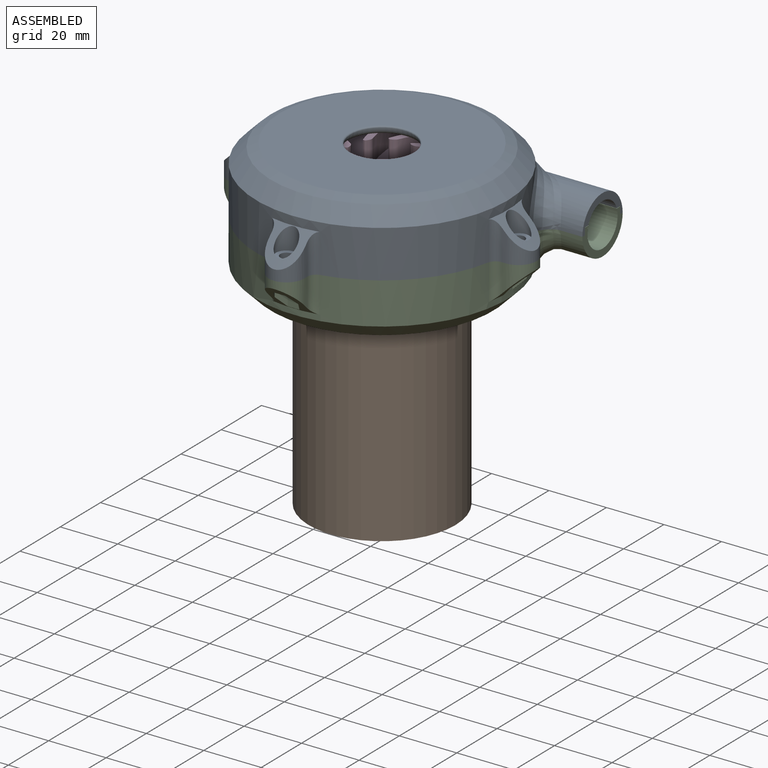
[diagram: assembled view]
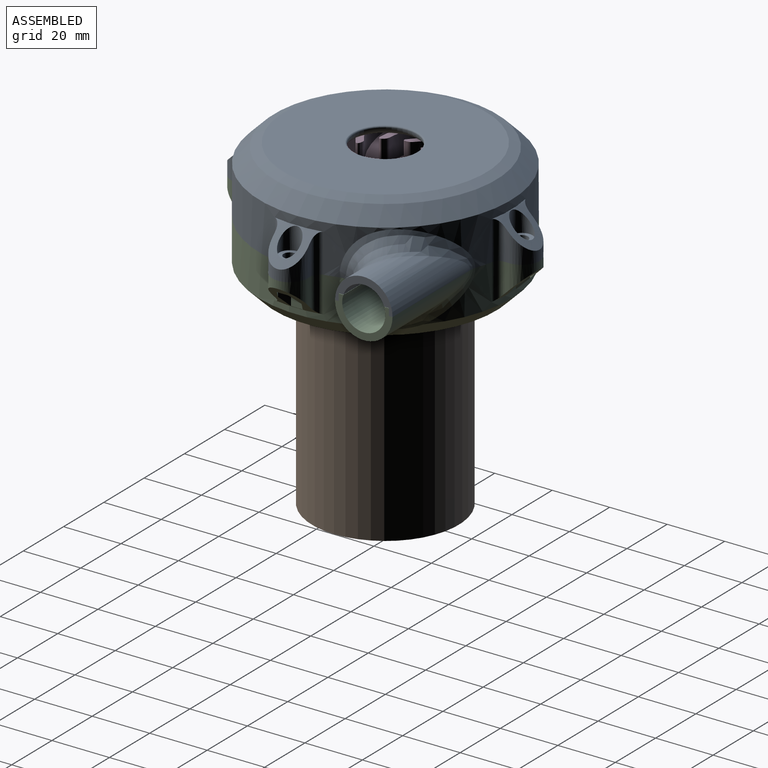
[diagram: assembled view, second angle]
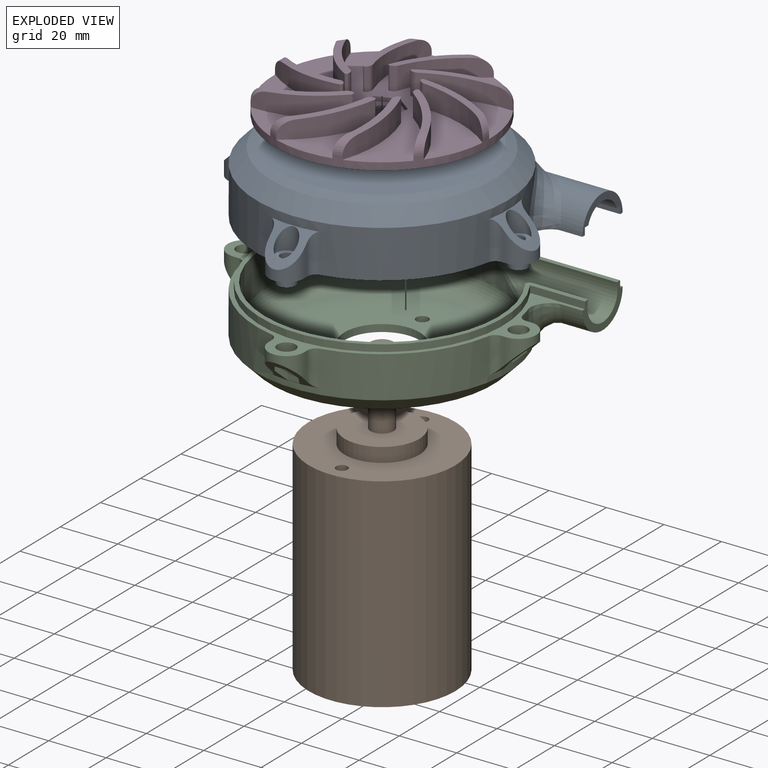
[diagram: exploded view]
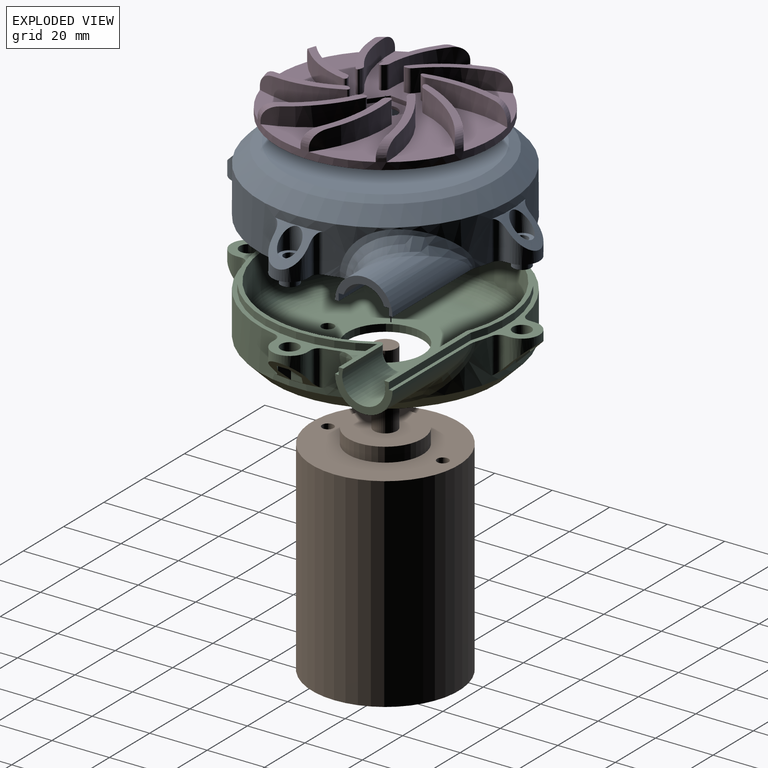
[diagram: exploded view, second angle]
ASSEMBLY  parts=4 mates=3
PART A: 65 faces, bbox 109.6x108.2x28.2 mm
  f0: cylinder r=7.5mm len=21.54mm, axis (-1,0,0), area 45mm2, adj f1,f4,f60
  f1: cylinder r=43.75mm len=15.45mm, axis (0,0,-1), area 10.6mm2, adj f0,f3,f60
  f2: plane 20x10mm, normal (1,0,0), area 61.8mm2, adj f3,f7,f39,f60,f61,f63
  f3: cylinder r=7.5mm len=33.44mm, axis (1,0,0), area 478.4mm2, adj f1,f2,f60
  f4: bspline ~21.84x16.4mm, area 83mm2, adj f0,f6,f60
  f5: cylinder r=43.75mm len=87.5mm, axis (0,0,-1), area 3112.7mm2, adj f7,f27,f28,f29,f30,f48,f49,f52
  f6: cylinder r=40.75mm len=81.5mm, axis (0,0,-1), area 3050.4mm2, adj f4,f14,f60
  f7: plane 109.57x108.22mm, normal (0,0,1), area 767.7mm2, adj f2,f5,f15,f16,f17,f18,f19,f20
  f8: cylinder r=2.15mm len=8.5mm, axis (0,0,1), area 114.8mm2, adj f31,f43
  f9: cylinder r=2.15mm len=8.5mm, axis (0,0,1), area 114.8mm2, adj f33,f45
  f10: cylinder r=2.15mm len=8.5mm, axis (0,0,1), area 114.8mm2, adj f35,f47
  f11: cylinder r=2.15mm len=8.5mm, axis (0,0,1), area 114.8mm2, adj f37,f41
  f12: cylinder r=11mm len=22mm, axis (0,0,-1), area 0mm2, adj f51,f64
  f13: plane 70.5x70.5mm, normal (0,0,-1), area 3488.1mm2, adj f50,f64
  f14: revolved ~81.5x81.5mm, area 5094.2mm2, adj f6,f51
  f15: plane 11x1.66mm, normal (0,1,0), area 16.8mm2, adj f7,f16,f30,f58
  f16: cylinder r=6.15mm len=12.3mm, axis (0,0,1), area 109.1mm2, adj f7,f15,f17,f30
  f17: plane 11x1.66mm, normal (0,-1,0), area 16.8mm2, adj f7,f16,f30,f59
  f18: plane 11x1.66mm, normal (-1,0,0), area 16.8mm2, adj f7,f19,f29,f57
  f19: cylinder r=6.15mm len=12.3mm, axis (0,0,1), area 109.1mm2, adj f7,f18,f20,f29
  f20: plane 11x1.66mm, normal (1,0,0), area 16.8mm2, adj f7,f19,f29,f56
  f21: plane 11x1.66mm, normal (0,-1,0), area 16.8mm2, adj f7,f22,f28,f54
  f22: cylinder r=6.15mm len=12.3mm, axis (0,0,1), area 109.1mm2, adj f7,f21,f23,f28
  f23: plane 11x1.66mm, normal (0,1,0), area 16.8mm2, adj f7,f22,f28,f55
  f24: plane 11x1.66mm, normal (1,0,0), area 16.8mm2, adj f7,f25,f27,f52
  f25: cylinder r=6.15mm len=12.3mm, axis (0,0,1), area 109.1mm2, adj f7,f24,f26,f27
  f26: plane 11x1.66mm, normal (-1,0,0), area 16.8mm2, adj f7,f25,f27,f53
  f27: cone r=43.75mm half-angle=45deg, axis (0,0,1), area 101.4mm2, adj f5,f24,f25,f26,f38,f52,f53
  f28: cone r=43.75mm half-angle=45deg, axis (0,0,1), area 102.2mm2, adj f5,f21,f22,f23,f36,f54,f55
  f29: cone r=43.75mm half-angle=45deg, axis (0,0,1), area 96.1mm2, adj f5,f18,f19,f20,f34,f56,f57
  f30: cone r=43.75mm half-angle=45deg, axis (0,0,1), area 106mm2, adj f5,f15,f16,f17,f32,f58,f59
  f31: plane 7.3x7.3mm, normal (0,0,-1), area 27.3mm2, adj f8,f32
  f32: cylinder r=3.65mm len=7.9mm, axis (0,0,-1), area 95.9mm2, adj f30,f31
  f33: plane 7.3x7.3mm, normal (0,0,-1), area 27.3mm2, adj f9,f34
  f34: cylinder r=3.65mm len=7.9mm, axis (0,0,-1), area 95.9mm2, adj f29,f33
  f35: plane 7.3x7.3mm, normal (0,0,-1), area 27.3mm2, adj f10,f36
  f36: cylinder r=3.65mm len=7.9mm, axis (0,0,-1), area 95.4mm2, adj f28,f35
  f37: plane 7.3x7.3mm, normal (0,0,-1), area 27.3mm2, adj f11,f38
  f38: cylinder r=3.65mm len=7.9mm, axis (0,0,-1), area 95.6mm2, adj f27,f37
  f39: cylinder r=10mm len=38.69mm, axis (1,0,0), area 606.5mm2, adj f2,f7,f48
  f40: cylinder r=3.15mm len=6.3mm, axis (0,0,-1), area 59.4mm2, adj f7,f41
  f41: plane 6.3x6.3mm, normal (0,0,1), area 16.7mm2, adj f11,f40
  f42: cylinder r=3.15mm len=6.3mm, axis (0,0,-1), area 59.4mm2, adj f7,f43
  f43: plane 6.3x6.3mm, normal (0,0,1), area 16.7mm2, adj f8,f42
  f44: cylinder r=3.15mm len=6.3mm, axis (0,0,-1), area 59.4mm2, adj f7,f45
  f45: plane 6.3x6.3mm, normal (0,0,1), area 16.7mm2, adj f9,f44
  f46: cylinder r=3.15mm len=6.3mm, axis (0,0,-1), area 59.4mm2, adj f7,f47
  f47: plane 6.3x6.3mm, normal (0,0,1), area 16.7mm2, adj f10,f46
  f48: bspline ~33.14x28.21mm, area 367.4mm2, adj f5,f7,f39
  f49: cone r=43.75mm half-angle=45deg, axis (0,0,1), area 1862.2mm2, adj f5,f50
  f50: cone r=35.25mm half-angle=67.5deg, axis (0,0,1), area 858.1mm2, adj f13,f49
  f51: torus R=13.5mm, axis (0,0,1), area 293.6mm2, adj f12,f14
  f52: cylinder r=3mm len=13.5mm, axis (0,0,-1), area 50.5mm2, adj f5,f7,f24,f27
  f53: cylinder r=3mm len=13.5mm, axis (0,0,-1), area 50.5mm2, adj f5,f7,f26,f27
  f54: cylinder r=3mm len=13.5mm, axis (0,0,-1), area 50.5mm2, adj f5,f7,f21,f28
  f55: cylinder r=3mm len=13.5mm, axis (0,0,-1), area 50.5mm2, adj f5,f7,f23,f28
  f56: cylinder r=3mm len=13.5mm, axis (0,0,-1), area 50.5mm2, adj f5,f7,f20,f29
  f57: cylinder r=3mm len=13.5mm, axis (0,0,-1), area 50.5mm2, adj f5,f7,f18,f29
  f58: cylinder r=3mm len=13.5mm, axis (0,0,-1), area 50.5mm2, adj f5,f7,f15,f30
  f59: cylinder r=3mm len=13.5mm, axis (0,0,-1), area 50.5mm2, adj f5,f7,f17,f30
  f60: plane 97.52x84.77mm, normal (0,0,1), area 452.2mm2, adj f0,f1,f2,f3,f4,f6,f61,f62
  f61: plane 19.08x2.5mm, normal (0,-1,0), area 47.7mm2, adj f2,f7,f60,f62
  f62: cylinder r=42.25mm len=84.5mm, axis (0,0,1), area 592.8mm2, adj f7,f60,f61,f63
  f63: plane 40.68x2.5mm, normal (0,1,0), area 101.7mm2, adj f2,f7,f60,f62
  f64: torus R=11.5mm, axis (0,0,1), area 55.2mm2, adj f12,f13
PART B: 11 faces, bbox 51x51x107 mm
  f0: cylinder r=25.5mm len=71mm, axis (0,0,-1), area 11375.7mm2, adj f7,f8
  f1: cylinder r=2mm len=71mm, axis (0,0,1), area 892.2mm2, adj f7,f8
  f2: cylinder r=2mm len=71mm, axis (0,0,1), area 892.2mm2, adj f7,f8
  f3: plane 26x26mm, normal (0,0,1), area 480.7mm2, adj f4,f6
  f4: cylinder r=4mm len=26mm, axis (0,0,1), area 653.5mm2, adj f3,f5
  f5: plane 8x8mm, normal (0,0,1), area 50.3mm2, adj f4
  f6: cylinder r=13mm len=26mm, axis (0,0,1), area 408.4mm2, adj f3,f7
  f7: plane 51x51mm, normal (0,0,1), area 1486.8mm2, adj f0,f1,f2,f6
  f8: plane 51x51mm, normal (0,0,-1), area 1486.8mm2, adj f0,f1,f2,f9
  f9: cylinder r=13mm len=26mm, axis (0,0,-1), area 408.4mm2, adj f8,f10
  f10: plane 26x26mm, normal (0,0,-1), area 530.9mm2, adj f9
PART C: 90 faces, bbox 109.6x108.2x24.8 mm
  f0: cylinder r=2.15mm len=4.3mm, axis (0,0,-1), area 25.7mm2, adj f52,f75
  f1: cylinder r=2.15mm len=4.3mm, axis (0,0,-1), area 25.7mm2, adj f50,f54
  f2: cylinder r=2.15mm len=4.3mm, axis (0,0,-1), area 25.7mm2, adj f48,f61
  f3: cylinder r=2.15mm len=4.3mm, axis (0,0,-1), area 25.7mm2, adj f46,f68
  f4: cylinder r=43.75mm len=87.5mm, axis (0,0,-1), area 2647.3mm2, adj f6,f10,f34,f35,f36,f37,f38,f39
  f5: cylinder r=40.75mm len=81.5mm, axis (0,0,-1), area 2903.2mm2, adj f11,f13,f14,f17,f19,f89
  f6: plane 109.57x108.22mm, normal (0,0,-1), area 766.2mm2, adj f4,f7,f9,f10,f12,f15,f16,f22
  f7: cylinder r=10mm len=38.69mm, axis (1,0,0), area 607.3mm2, adj f6,f9,f10
  f8: cylinder r=7.5mm len=40.99mm, axis (1,0,0), area 799.4mm2, adj f9,f11,f17,f20,f21
  f9: plane 20x12.4mm, normal (1,0,0), area 75.3mm2, adj f6,f7,f8,f12,f15,f17
  f10: bspline ~33.09x28.14mm, area 367.4mm2, adj f4,f6,f7,f88
  f11: bspline ~22.41x16.74mm, area 89.8mm2, adj f5,f8,f13,f14,f21
  f12: plane 19.08x2.4mm, normal (0,1,0), area 45.8mm2, adj f6,f9,f16,f17
  f13: extruded ~2.4x1.54mm, area 4.4mm2, adj f5,f11,f17,f18,f20
  f14: extruded ~1.62x1.25mm, area 1mm2, adj f5,f11,f19
  f15: plane 40.68x2.4mm, normal (0,-1,0), area 97.6mm2, adj f6,f9,f16,f17
  f16: cylinder r=42.25mm len=84.5mm, axis (0,0,1), area 569.1mm2, adj f6,f12,f15,f17
  f17: plane 97.65x84.9mm, normal (0,0,-1), area 451.2mm2, adj f5,f8,f9,f12,f13,f15,f16,f18
  f18: bspline ~1.99x1.4mm, area 0mm2, adj f13,f17,f20
  f19: bspline ~4.43x1.95mm, area 1.8mm2, adj f5,f14,f17,f21
  f20: bspline ~3.62x1.74mm, area 2mm2, adj f8,f13,f17,f18
  f21: bspline ~3.2x0.89mm, area 1mm2, adj f8,f11,f17,f19
  f22: cylinder r=6.15mm len=12.3mm, axis (0,0,-1), area 89.8mm2, adj f6,f23,f24,f34
  f23: plane 10x1.66mm, normal (-1,0,0), area 15.2mm2, adj f6,f22,f34,f45
  f24: plane 10x1.66mm, normal (1,0,0), area 15.2mm2, adj f6,f22,f34,f44
  f25: plane 10x1.66mm, normal (0,-1,0), area 15.2mm2, adj f6,f26,f37,f43
  f26: cylinder r=6.15mm len=12.3mm, axis (0,0,-1), area 89.8mm2, adj f6,f25,f27,f37
  f27: plane 10x1.66mm, normal (0,1,0), area 15.2mm2, adj f6,f26,f37,f42
  f28: plane 10x1.66mm, normal (-1,0,0), area 15.2mm2, adj f6,f29,f36,f40
  f29: cylinder r=6.15mm len=12.3mm, axis (0,0,-1), area 89.8mm2, adj f6,f28,f30,f36
  f30: plane 10x1.66mm, normal (1,0,0), area 15.2mm2, adj f6,f29,f36,f41
  f31: plane 10x1.66mm, normal (0,1,0), area 15.2mm2, adj f6,f32,f35,f38
  f32: cylinder r=6.15mm len=12.3mm, axis (0,0,-1), area 89.8mm2, adj f6,f31,f33,f35
  f33: plane 10x1.66mm, normal (0,-1,0), area 15.2mm2, adj f6,f32,f35,f39
  f34: cone r=43.75mm half-angle=45deg, axis (0,0,-1), area 98.9mm2, adj f4,f22,f23,f24,f44,f45,f76,f77
  f35: cone r=43.75mm half-angle=45deg, axis (0,0,-1), area 98.9mm2, adj f4,f31,f32,f33,f38,f39,f69,f70
  f36: cone r=43.75mm half-angle=45deg, axis (0,0,-1), area 98.9mm2, adj f4,f28,f29,f30,f40,f41,f62,f63
  f37: cone r=43.75mm half-angle=45deg, axis (0,0,-1), area 98.9mm2, adj f4,f25,f26,f27,f42,f43,f55,f56
  f38: cylinder r=3mm len=12.5mm, axis (0,0,-1), area 46.4mm2, adj f4,f6,f31,f35
  f39: cylinder r=3mm len=12.5mm, axis (0,0,-1), area 46.4mm2, adj f4,f6,f33,f35
  f40: cylinder r=3mm len=12.5mm, axis (0,0,-1), area 46.4mm2, adj f4,f6,f28,f36
  f41: cylinder r=3mm len=12.5mm, axis (0,0,-1), area 46.4mm2, adj f4,f6,f30,f36
  f42: cylinder r=3mm len=12.5mm, axis (0,0,-1), area 46.4mm2, adj f4,f6,f27,f37
  f43: cylinder r=3mm len=12.5mm, axis (0,0,-1), area 46.4mm2, adj f4,f6,f25,f37
  f44: cylinder r=3mm len=12.5mm, axis (0,0,-1), area 46.4mm2, adj f4,f6,f24,f34
  f45: cylinder r=3mm len=12.5mm, axis (0,0,-1), area 46.4mm2, adj f4,f6,f23,f34
  f46: plane 6.35x6.35mm, normal (0,0,-1), area 17.1mm2, adj f3,f47
  f47: cylinder r=3.17mm len=6.35mm, axis (0,0,-1), area 61.8mm2, adj f6,f46
  f48: plane 6.35x6.35mm, normal (0,0,-1), area 17.1mm2, adj f2,f49
  f49: cylinder r=3.17mm len=6.35mm, axis (0,0,-1), area 61.8mm2, adj f6,f48
  f50: plane 6.35x6.35mm, normal (0,0,-1), area 17.1mm2, adj f1,f51
  f51: cylinder r=3.17mm len=6.35mm, axis (0,0,-1), area 61.8mm2, adj f6,f50
  f52: plane 6.35x6.35mm, normal (0,0,-1), area 17.1mm2, adj f0,f53
  f53: cylinder r=3.17mm len=6.35mm, axis (0,0,-1), area 61.8mm2, adj f6,f52
  f54: plane 8.2x7.1mm, normal (0,0,1), area 29.1mm2, adj f1,f55,f56,f57,f58,f59,f60
  f55: plane 7.33x3.63mm, normal (-0.5,0.87,0), area 22.2mm2, adj f37,f54,f56,f60
  f56: plane 7.44x4.24mm, normal (-1,0,0), area 29.9mm2, adj f37,f54,f55,f57
  f57: plane 7.33x3.63mm, normal (-0.5,-0.87,0), area 22.2mm2, adj f37,f54,f56,f58
  f58: plane 3.66x3.64mm, normal (0.5,-0.87,0), area 7.7mm2, adj f37,f54,f57,f59
  f59: plane 4.22x0.32mm, normal (1,0,0), area 0.8mm2, adj f37,f54,f58,f60
  f60: plane 3.66x3.64mm, normal (0.5,0.87,0), area 7.7mm2, adj f37,f54,f55,f59
  f61: plane 8.2x7.1mm, normal (0,0,1), area 29.1mm2, adj f2,f62,f63,f64,f65,f66,f67
  f62: plane 3.66x3.64mm, normal (-0.87,-0.5,0), area 7.7mm2, adj f36,f61,f63,f67
  f63: plane 4.22x0.32mm, normal (0,-1,0), area 0.8mm2, adj f36,f61,f62,f64
  f64: plane 3.66x3.64mm, normal (0.87,-0.5,0), area 7.7mm2, adj f36,f61,f63,f65
  f65: plane 7.33x3.63mm, normal (0.87,0.5,0), area 22.2mm2, adj f36,f61,f64,f66
  f66: plane 7.44x4.24mm, normal (0,1,0), area 29.9mm2, adj f36,f61,f65,f67
  f67: plane 7.33x3.63mm, normal (-0.87,0.5,0), area 22.2mm2, adj f36,f61,f62,f66
  f68: plane 8.2x7.1mm, normal (0,0,1), area 29.1mm2, adj f3,f69,f70,f71,f72,f73,f74
  f69: plane 3.66x3.64mm, normal (-0.5,0.87,0), area 7.7mm2, adj f35,f68,f70,f74
  f70: plane 4.22x0.32mm, normal (-1,0,0), area 0.8mm2, adj f35,f68,f69,f71
  f71: plane 3.66x3.64mm, normal (-0.5,-0.87,0), area 7.7mm2, adj f35,f68,f70,f72
  f72: plane 7.33x3.63mm, normal (0.5,-0.87,0), area 22.2mm2, adj f35,f68,f71,f73
  f73: plane 7.44x4.24mm, normal (1,0,0), area 29.9mm2, adj f35,f68,f72,f74
  f74: plane 7.33x3.63mm, normal (0.5,0.87,0), area 22.2mm2, adj f35,f68,f69,f73
  f75: plane 8.2x7.1mm, normal (0,0,1), area 29.1mm2, adj f0,f76,f77,f78,f79,f80,f81
  f76: plane 3.66x3.64mm, normal (0.87,0.5,0), area 7.7mm2, adj f34,f75,f77,f81
  f77: plane 4.22x0.32mm, normal (0,1,0), area 0.8mm2, adj f34,f75,f76,f78
  f78: plane 3.66x3.64mm, normal (-0.87,0.5,0), area 7.7mm2, adj f34,f75,f77,f79
  f79: plane 7.33x3.63mm, normal (-0.87,-0.5,0), area 22.2mm2, adj f34,f75,f78,f80
  f80: plane 7.44x4.24mm, normal (0,-1,0), area 29.9mm2, adj f34,f75,f79,f81
  f81: plane 7.33x3.63mm, normal (0.87,-0.5,0), area 22.2mm2, adj f34,f75,f76,f80
  f82: plane 67.5x67.5mm, normal (0,0,-1), area 3010.3mm2, adj f83,f84,f85,f89
  f83: cylinder r=2.15mm len=4.3mm, axis (0,0,-1), area 33.8mm2, adj f82,f86
  f84: cylinder r=13.1mm len=26.2mm, axis (0,0,-1), area 205.8mm2, adj f82,f86
  f85: cylinder r=2.15mm len=4.3mm, axis (0,0,-1), area 33.8mm2, adj f82,f86
  f86: plane 78.08x78.08mm, normal (0,0,1), area 4148.5mm2, adj f83,f84,f85,f87,f88
  f87: cone r=38.75mm half-angle=45deg, axis (0,0,-1), area 1729.7mm2, adj f4,f86,f88
  f88: bspline ~14.33x12.98mm, area 96.3mm2, adj f10,f86,f87
  f89: torus R=33.75mm, axis (0,0,1), area 2639.6mm2, adj f5,f82
PART D: 81 faces, bbox 75.3x75x10.5 mm
  f0: cylinder r=4.1mm len=8.2mm, axis (0,0,-1), area 25.8mm2, adj f3,f80
  f1: cylinder r=37.5mm len=75mm, axis (0,0,-1), area 627.3mm2, adj f2,f3,f4,f5,f6,f7,f8,f9
  f2: plane 75x75mm, normal (0,0,1), area 3501.9mm2, adj f1,f4,f5,f6,f7,f8,f9,f10
  f3: plane 75x75mm, normal (0,0,-1), area 4365.1mm2, adj f0,f1
  f4: cylinder r=41.72mm len=23.22mm, axis (0,0,1), area 194.9mm2, adj f1,f2,f31,f51,f71
  f5: cylinder r=44.22mm len=29.85mm, axis (0,0,1), area 203.7mm2, adj f1,f2,f30,f60,f70
  f6: cylinder r=41.72mm len=28.53mm, axis (0,0,1), area 194.9mm2, adj f1,f2,f30,f50,f70
  f7: cylinder r=44.22mm len=24.64mm, axis (0,0,1), area 203.7mm2, adj f1,f2,f29,f59,f69
  f8: cylinder r=41.72mm len=22.95mm, axis (0,0,1), area 194.9mm2, adj f1,f2,f29,f49,f69
  f9: cylinder r=44.22mm len=28.13mm, axis (0,0,1), area 203.7mm2, adj f1,f2,f28,f58,f68
  f10: cylinder r=41.72mm len=27.21mm, axis (0,0,1), area 194.9mm2, adj f1,f2,f28,f48,f68
  f11: cylinder r=44.22mm len=28.65mm, axis (0,0,1), area 203.7mm2, adj f1,f2,f27,f57,f67
  f12: cylinder r=41.72mm len=27.07mm, axis (0,0,1), area 194.9mm2, adj f1,f2,f27,f47,f67
  f13: cylinder r=44.22mm len=23.66mm, axis (0,0,1), area 203.7mm2, adj f1,f2,f26,f56,f66
  f14: cylinder r=41.72mm len=23.22mm, axis (0,0,1), area 194.9mm2, adj f1,f2,f26,f46,f66
  f15: cylinder r=44.22mm len=29.85mm, axis (0,0,1), area 203.7mm2, adj f1,f2,f25,f55,f65
  f16: cylinder r=41.72mm len=28.53mm, axis (0,0,1), area 194.9mm2, adj f1,f2,f25,f45,f65
  f17: cylinder r=44.22mm len=24.64mm, axis (0,0,1), area 203.7mm2, adj f1,f2,f24,f54,f64
  f18: cylinder r=41.72mm len=22.95mm, axis (0,0,1), area 194.9mm2, adj f1,f2,f24,f44,f64
  f19: cylinder r=44.22mm len=28.13mm, axis (0,0,1), area 203.7mm2, adj f1,f2,f33,f63,f73
  f20: cylinder r=41.72mm len=27.21mm, axis (0,0,1), area 194.9mm2, adj f1,f2,f33,f53,f73
  f21: cylinder r=44.22mm len=28.65mm, axis (0,0,1), area 203.7mm2, adj f1,f2,f32,f62,f72
  f22: cylinder r=41.72mm len=27.07mm, axis (0,0,1), area 194.9mm2, adj f1,f2,f32,f52,f72
  f23: cylinder r=44.22mm len=23.66mm, axis (0,0,1), area 203.7mm2, adj f1,f2,f31,f61,f71
  f24: cone r=10.5mm half-angle=85.5deg, axis (0,0,-1), area 63mm2, adj f17,f18,f34,f44,f54,f64
  f25: cone r=10.5mm half-angle=85.5deg, axis (0,0,-1), area 63mm2, adj f15,f16,f35,f45,f55,f65
  f26: cone r=10.5mm half-angle=85.5deg, axis (0,0,-1), area 63mm2, adj f13,f14,f36,f46,f56,f66
  f27: cone r=10.5mm half-angle=85.5deg, axis (0,0,-1), area 63mm2, adj f11,f12,f37,f47,f57,f67
  f28: cone r=10.5mm half-angle=85.5deg, axis (0,0,-1), area 63mm2, adj f9,f10,f38,f48,f58,f68
  f29: cone r=10.5mm half-angle=85.5deg, axis (0,0,-1), area 63mm2, adj f7,f8,f39,f49,f59,f69
  f30: cone r=10.5mm half-angle=85.5deg, axis (0,0,-1), area 63mm2, adj f5,f6,f41,f50,f60,f70
  f31: cone r=10.5mm half-angle=85.5deg, axis (0,0,-1), area 63mm2, adj f4,f23,f40,f51,f61,f71
  f32: cone r=10.5mm half-angle=85.5deg, axis (0,0,-1), area 63mm2, adj f21,f22,f42,f52,f62,f72
  f33: cone r=10.5mm half-angle=85.5deg, axis (0,0,-1), area 63mm2, adj f19,f20,f43,f53,f63,f73
  f34: cylinder r=11mm len=7.96mm, axis (0,0,1), area 4.4mm2, adj f2,f24,f44,f54
  f35: cylinder r=11mm len=7.96mm, axis (0,0,1), area 4.4mm2, adj f2,f25,f45,f55
  f36: cylinder r=11mm len=7.96mm, axis (0,0,1), area 4.4mm2, adj f2,f26,f46,f56
  f37: cylinder r=11mm len=7.96mm, axis (0,0,1), area 4.4mm2, adj f2,f27,f47,f57
  f38: cylinder r=11mm len=7.96mm, axis (0,0,1), area 4.4mm2, adj f2,f28,f48,f58
  f39: cylinder r=11mm len=7.96mm, axis (0,0,1), area 4.4mm2, adj f2,f29,f49,f59
  f40: cylinder r=11mm len=7.96mm, axis (0,0,1), area 4.4mm2, adj f2,f31,f51,f61
  f41: cylinder r=11mm len=7.96mm, axis (0,0,1), area 4.4mm2, adj f2,f30,f50,f60
  f42: cylinder r=11mm len=7.96mm, axis (0,0,1), area 4.4mm2, adj f2,f32,f52,f62
  f43: cylinder r=11mm len=7.96mm, axis (0,0,1), area 4.4mm2, adj f2,f33,f53,f63
  f44: cylinder r=2mm len=7.96mm, axis (0,0,-1), area 14.8mm2, adj f2,f18,f24,f34
  f45: cylinder r=2mm len=7.96mm, axis (0,0,-1), area 14.8mm2, adj f2,f16,f25,f35
  f46: cylinder r=2mm len=7.96mm, axis (0,0,-1), area 14.8mm2, adj f2,f14,f26,f36
  f47: cylinder r=2mm len=7.96mm, axis (0,0,-1), area 14.8mm2, adj f2,f12,f27,f37
  f48: cylinder r=2mm len=7.96mm, axis (0,0,-1), area 14.8mm2, adj f2,f10,f28,f38
  f49: cylinder r=2mm len=7.96mm, axis (0,0,-1), area 14.8mm2, adj f2,f8,f29,f39
  f50: cylinder r=2mm len=7.96mm, axis (0,0,-1), area 14.8mm2, adj f2,f6,f30,f41
  f51: cylinder r=2mm len=7.96mm, axis (0,0,-1), area 14.8mm2, adj f2,f4,f31,f40
  f52: cylinder r=2mm len=7.96mm, axis (0,0,-1), area 14.8mm2, adj f2,f22,f32,f42
  f53: cylinder r=2mm len=7.96mm, axis (0,0,-1), area 14.8mm2, adj f2,f20,f33,f43
  f54: cylinder r=0.75mm len=7.96mm, axis (0,0,1), area 13.2mm2, adj f2,f17,f24,f34
  f55: cylinder r=0.75mm len=7.96mm, axis (0,0,1), area 13.2mm2, adj f2,f15,f25,f35
  f56: cylinder r=0.75mm len=7.96mm, axis (0,0,1), area 13.2mm2, adj f2,f13,f26,f36
  f57: cylinder r=0.75mm len=7.96mm, axis (0,0,1), area 13.2mm2, adj f2,f11,f27,f37
  f58: cylinder r=0.75mm len=7.96mm, axis (0,0,1), area 13.2mm2, adj f2,f9,f28,f38
  f59: cylinder r=0.75mm len=7.96mm, axis (0,0,1), area 13.2mm2, adj f2,f7,f29,f39
  f60: cylinder r=0.75mm len=7.96mm, axis (0,0,1), area 13.2mm2, adj f2,f5,f30,f41
  f61: cylinder r=0.75mm len=7.96mm, axis (0,0,1), area 13.2mm2, adj f2,f23,f31,f40
  f62: cylinder r=0.75mm len=7.96mm, axis (0,0,1), area 13.2mm2, adj f2,f21,f32,f42
  f63: cylinder r=0.75mm len=7.96mm, axis (0,0,1), area 13.2mm2, adj f2,f19,f33,f43
  f64: torus R=32.5mm, axis (0,0,1), area 19.4mm2, adj f1,f17,f18,f24
  f65: torus R=32.5mm, axis (0,0,1), area 19.4mm2, adj f1,f15,f16,f25
  f66: torus R=32.5mm, axis (0,0,1), area 19.4mm2, adj f1,f13,f14,f26
  f67: torus R=32.5mm, axis (0,0,1), area 19.4mm2, adj f1,f11,f12,f27
  f68: torus R=32.5mm, axis (0,0,1), area 19.4mm2, adj f1,f9,f10,f28
  f69: torus R=32.5mm, axis (0,0,1), area 19.4mm2, adj f1,f7,f8,f29
  f70: torus R=32.5mm, axis (0,0,1), area 19.4mm2, adj f1,f5,f6,f30
  f71: torus R=32.5mm, axis (0,0,1), area 19.4mm2, adj f1,f4,f23,f31
  f72: torus R=32.5mm, axis (0,0,1), area 19.4mm2, adj f1,f21,f22,f32
  f73: torus R=32.5mm, axis (0,0,1), area 19.4mm2, adj f1,f19,f20,f33
  f74: plane 6.5x3.75mm, normal (-0.87,-0.5,0), area 11.3mm2, adj f2,f75,f79,f80
  f75: plane 7.51x1.5mm, normal (0,-1,0), area 11.3mm2, adj f2,f74,f76,f80
  f76: plane 6.5x3.75mm, normal (0.87,-0.5,0), area 11.3mm2, adj f2,f75,f77,f80
  f77: plane 6.5x3.75mm, normal (0.87,0.5,0), area 11.3mm2, adj f2,f76,f78,f80
  f78: plane 7.51x1.5mm, normal (0,1,0), area 11.3mm2, adj f2,f77,f79,f80
  f79: plane 6.5x3.75mm, normal (-0.87,0.5,0), area 11.3mm2, adj f2,f74,f78,f80
  f80: plane 15.01x13mm, normal (0,0,1), area 93.5mm2, adj f0,f74,f75,f76,f77,f78,f79
PLACE A rot(axis=(1,0,0),180deg) t=(0,0,0)mm
PLACE B t=(0,0,-65)mm
PLACE C rot(axis=(-1,0,0),180deg) t=(55,0,-23)mm
PLACE D rot(axis=(0,0,1),143.5deg) t=(0,0,-14.48)mm
MATE fastened B.f2 <-> C.f83  axis (0,0,1) through (0,-20,-42.5)mm
MATE fastened C.f4 <-> A.f6  axis (0,0,1) through (0,0,-23)mm
MATE revolute A.f6 <-> D.f0  axis (0,0,1) through (0,0,-3.73)mm
